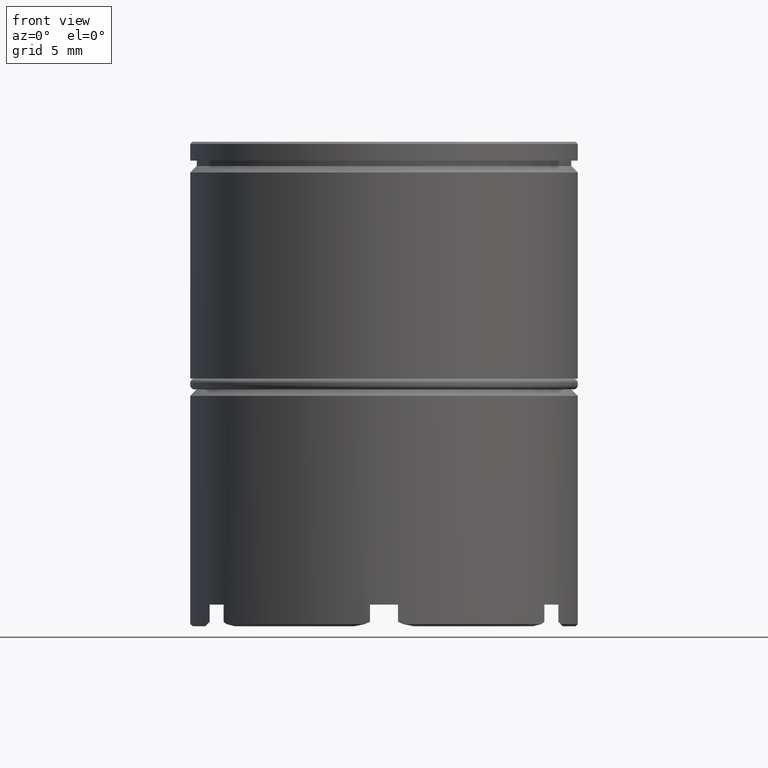
[diagram: clean part render]
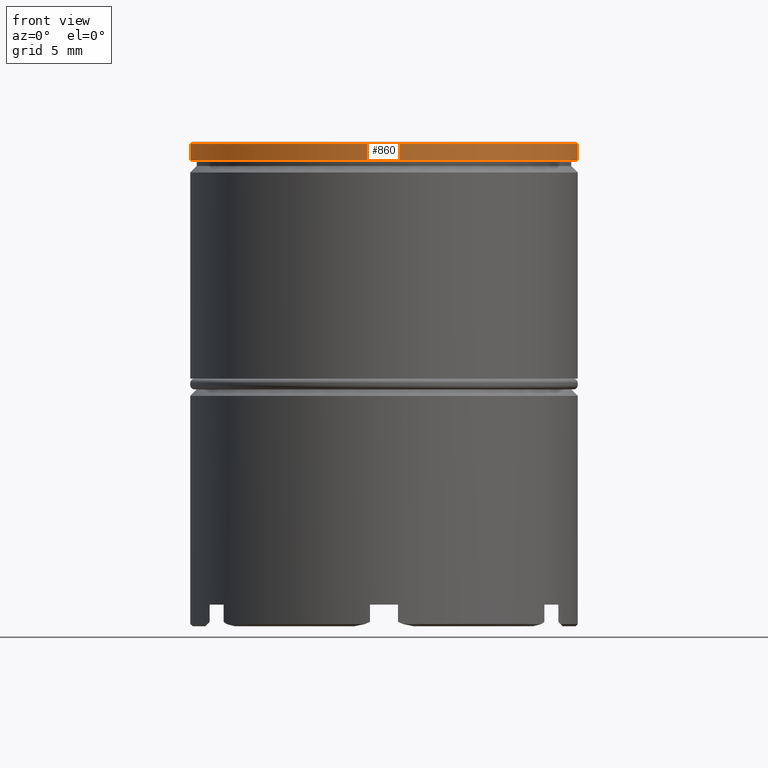
[diagram: same view with one face highlighted and labeled with its STEP entity id]
A machine part, front view. The second image highlights one B-rep face of the part: STEP entity #860.
In plain terms, the highlighted cylindrical surface (partial cylindrical patch) has radius 9 mm, axis along (-0, -0, 1).
Its self-contained STEP definition (entity closure, byte-faithful):
#33 = VERTEX_POINT ( 'NONE', #436 ) ;
#70 = VECTOR ( 'NONE', #539, 1000.000000000000000 ) ;
#209 = LINE ( 'NONE', #831, #70 ) ;
#321 = DIRECTION ( 'NONE',  ( -0.000000000000000000, -0.000000000000000000, 1.000000000000000000 ) ) ;
#354 = ORIENTED_EDGE ( 'NONE', *, *, #1363, .T. ) ;
#412 = CARTESIAN_POINT ( 'NONE',  ( 0.000000000000000000, 0.000000000000000000, 0.000000000000000000 ) ) ;
#436 = CARTESIAN_POINT ( 'NONE',  ( -9.000000000000000000, 1.102182119232617714E-15, -0.8749999999999998890 ) ) ;
#491 = VERTEX_POINT ( 'NONE', #703 ) ;
#507 = VECTOR ( 'NONE', #1476, 1000.000000000000000 ) ;
#539 = DIRECTION ( 'NONE',  ( -0.000000000000000000, -0.000000000000000000, 1.000000000000000000 ) ) ;
#573 = DIRECTION ( 'NONE',  ( 0.000000000000000000, 0.000000000000000000, -1.000000000000000000 ) ) ;
#576 = VERTEX_POINT ( 'NONE', #866 ) ;
#633 = AXIS2_PLACEMENT_3D ( 'NONE', #412, #321, #818 ) ;
#647 = ORIENTED_EDGE ( 'NONE', *, *, #778, .T. ) ;
#652 = VERTEX_POINT ( 'NONE', #870 ) ;
#660 = AXIS2_PLACEMENT_3D ( 'NONE', #819, #573, #1185 ) ;
#703 = CARTESIAN_POINT ( 'NONE',  ( 9.000000000000000000, 0.000000000000000000, -0.8749999999999998890 ) ) ;
#707 = CARTESIAN_POINT ( 'NONE',  ( 0.000000000000000000, 0.000000000000000000, -0.8749999999999998890 ) ) ;
#714 = LINE ( 'NONE', #1218, #507 ) ;
#726 = EDGE_CURVE ( 'NONE', #33, #491, #1627, .T. ) ;
#778 = EDGE_CURVE ( 'NONE', #491, #576, #209, .T. ) ;
#818 = DIRECTION ( 'NONE',  ( 1.000000000000000000, 0.000000000000000000, 0.000000000000000000 ) ) ;
#819 = CARTESIAN_POINT ( 'NONE',  ( 0.000000000000000000, 0.000000000000000000, -0.09999999999999419076 ) ) ;
#831 = CARTESIAN_POINT ( 'NONE',  ( 9.000000000000000000, 0.000000000000000000, 0.000000000000000000 ) ) ;
#860 = ADVANCED_FACE ( 'NONE', ( #940 ), #1550, .T. ) ;
#861 = CIRCLE ( 'NONE', #660, 9.000000000000000000 ) ;
#866 = CARTESIAN_POINT ( 'NONE',  ( 9.000000000000000000, 0.000000000000000000, -0.09999999999999419076 ) ) ;
#870 = CARTESIAN_POINT ( 'NONE',  ( -9.000000000000000000, 1.102182119232617714E-15, -0.09999999999999419076 ) ) ;
#907 = EDGE_CURVE ( 'NONE', #33, #652, #714, .T. ) ;
#940 = FACE_OUTER_BOUND ( 'NONE', #1279, .T. ) ;
#1118 = AXIS2_PLACEMENT_3D ( 'NONE', #707, #1423, #1447 ) ;
#1185 = DIRECTION ( 'NONE',  ( 1.000000000000000000, 0.000000000000000000, 0.000000000000000000 ) ) ;
#1218 = CARTESIAN_POINT ( 'NONE',  ( -9.000000000000000000, 1.102182119232617714E-15, 0.000000000000000000 ) ) ;
#1279 = EDGE_LOOP ( 'NONE', ( #1290, #1398, #647, #354 ) ) ;
#1290 = ORIENTED_EDGE ( 'NONE', *, *, #907, .F. ) ;
#1363 = EDGE_CURVE ( 'NONE', #576, #652, #861, .T. ) ;
#1398 = ORIENTED_EDGE ( 'NONE', *, *, #726, .T. ) ;
#1423 = DIRECTION ( 'NONE',  ( -0.000000000000000000, -0.000000000000000000, 1.000000000000000000 ) ) ;
#1447 = DIRECTION ( 'NONE',  ( 1.000000000000000000, 0.000000000000000000, 0.000000000000000000 ) ) ;
#1476 = DIRECTION ( 'NONE',  ( -0.000000000000000000, -0.000000000000000000, 1.000000000000000000 ) ) ;
#1550 = CYLINDRICAL_SURFACE ( 'NONE', #633, 9.000000000000000000 ) ;
#1627 = CIRCLE ( 'NONE', #1118, 9.000000000000000000 ) ;